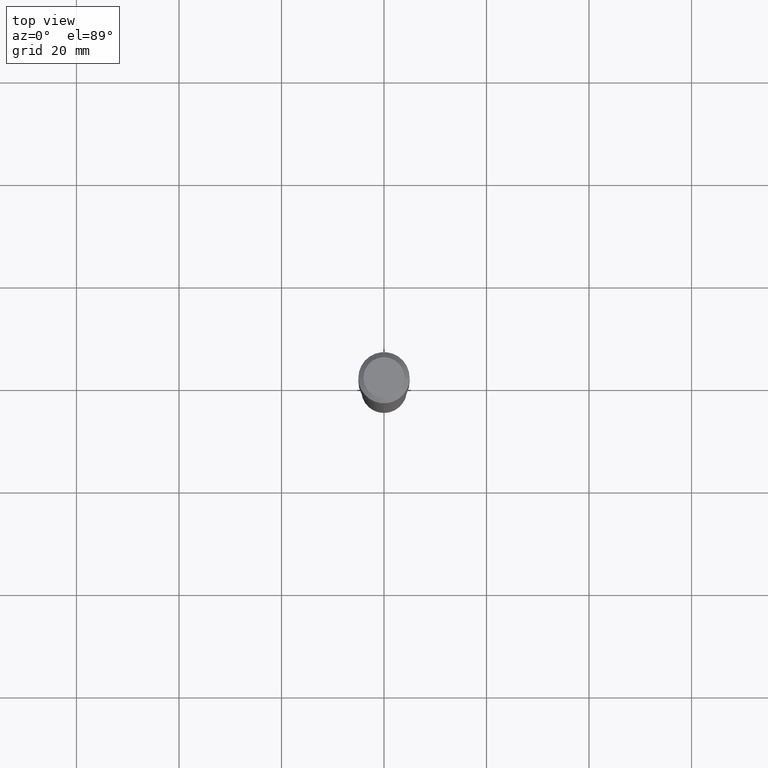
[diagram: clean part render]
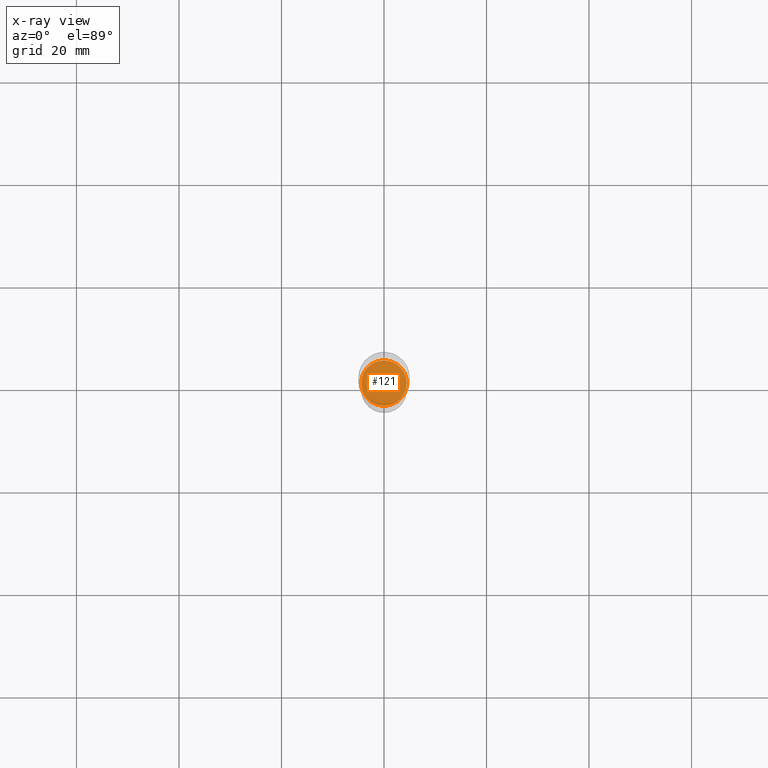
[diagram: x-ray — body ghosted, one internal face saturated and labeled with its STEP entity id]
A machine part, top view, then the same camera in x-ray: the body is ghosted and one INTERNAL B-rep face — a face not visible from any outside direction — is saturated and labeled: STEP entity #121.
In plain terms, the highlighted planar face has unit normal (-0, 0, 1).
Its self-contained STEP definition (entity closure, byte-faithful):
#61 = DIRECTION ( 'NONE',  ( 1.000000000000000000, -6.982962677686260400E-15, 0.000000000000000000 ) ) ;
#77 = CARTESIAN_POINT ( 'NONE',  ( 0.1746999999999999942, -9.742280379774020680E-15, -2.440899999999999181 ) ) ;
#79 = EDGE_CURVE ( 'NONE', #462, #425, #140, .T. ) ;
#85 = EDGE_CURVE ( 'NONE', #425, #462, #271, .T. ) ;
#95 = CARTESIAN_POINT ( 'NONE',  ( 5.969144809017297917E-29, -8.522356799982231388E-15, -2.440899999999999181 ) ) ;
#107 = ORIENTED_EDGE ( 'NONE', *, *, #85, .F. ) ;
#121 = ADVANCED_FACE ( 'NONE', ( #279 ), #170, .F. ) ;
#140 = CIRCLE ( 'NONE', #205, 0.1746999999999999942 ) ;
#147 = ORIENTED_EDGE ( 'NONE', *, *, #79, .F. ) ;
#163 = CARTESIAN_POINT ( 'NONE',  ( 5.969144809017297917E-29, -8.522356799982231388E-15, -2.440899999999999181 ) ) ;
#170 = PLANE ( 'NONE',  #180 ) ;
#180 = AXIS2_PLACEMENT_3D ( 'NONE', #163, #322, #470 ) ;
#201 = DIRECTION ( 'NONE',  ( -2.445468806185136597E-29, 3.491481338843145583E-15, 1.000000000000000000 ) ) ;
#205 = AXIS2_PLACEMENT_3D ( 'NONE', #320, #201, #61 ) ;
#229 = EDGE_LOOP ( 'NONE', ( #147, #107 ) ) ;
#248 = DIRECTION ( 'NONE',  ( -2.445468806185136597E-29, 3.491481338843145583E-15, 1.000000000000000000 ) ) ;
#271 = CIRCLE ( 'NONE', #349, 0.1746999999999999942 ) ;
#279 = FACE_OUTER_BOUND ( 'NONE', #229, .T. ) ;
#320 = CARTESIAN_POINT ( 'NONE',  ( 5.969144809017297917E-29, -8.522356799982231388E-15, -2.440899999999999181 ) ) ;
#322 = DIRECTION ( 'NONE',  ( -2.438088387897960049E-29, 3.491481338843145188E-15, 1.000000000000000000 ) ) ;
#349 = AXIS2_PLACEMENT_3D ( 'NONE', #95, #248, #356 ) ;
#356 = DIRECTION ( 'NONE',  ( 1.000000000000000000, -6.982962677686260400E-15, 0.000000000000000000 ) ) ;
#425 = VERTEX_POINT ( 'NONE', #488 ) ;
#462 = VERTEX_POINT ( 'NONE', #77 ) ;
#470 = DIRECTION ( 'NONE',  ( 1.000000000000000000, -6.982962677686265922E-15, 4.876176775795935793E-29 ) ) ;
#488 = CARTESIAN_POINT ( 'NONE',  ( -0.1746999999999999942, -7.278389413435225401E-15, -2.440899999999999181 ) ) ;